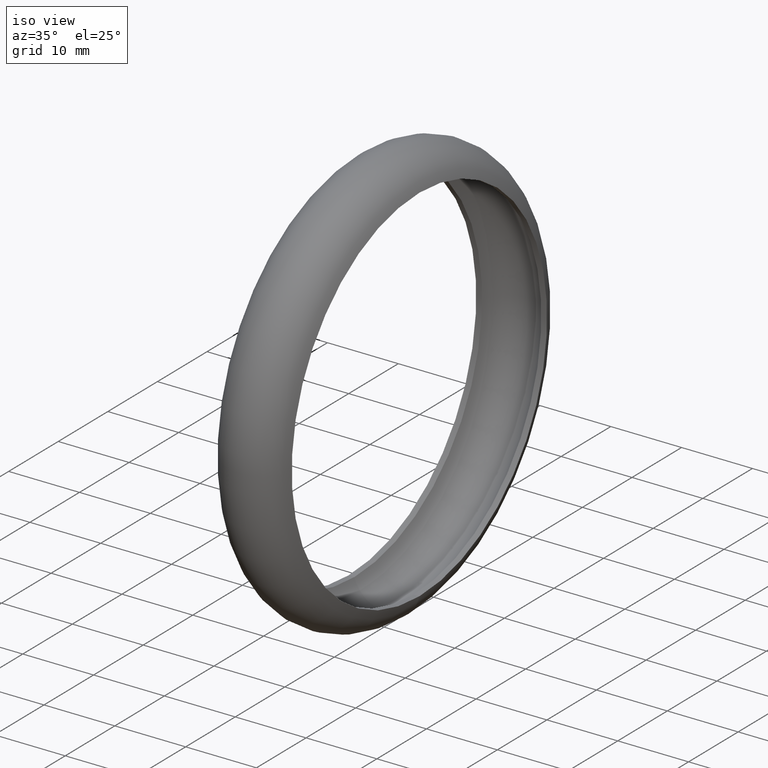
[diagram: clean part render]
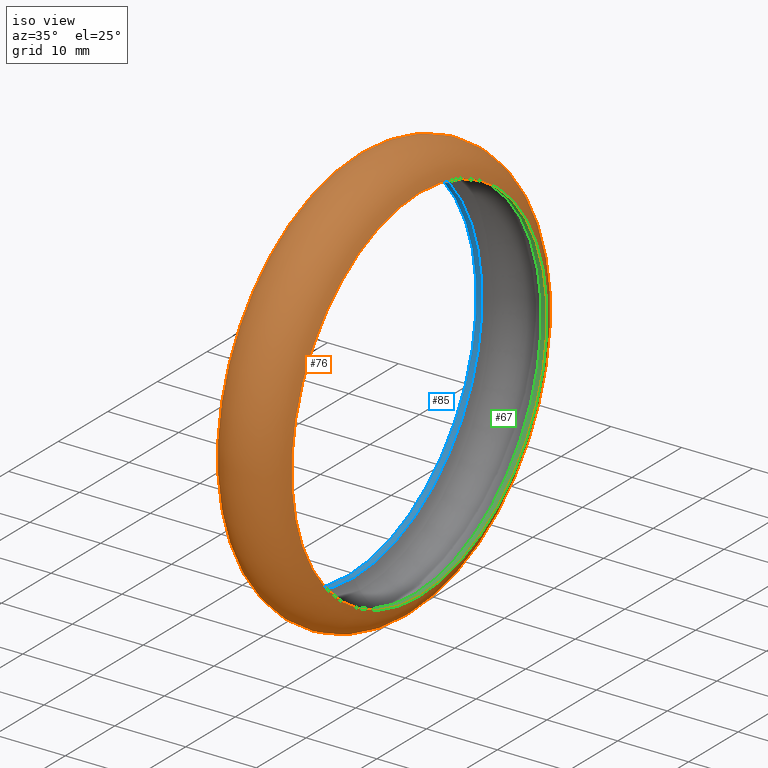
[diagram: same view with three faces highlighted in distinct colors, each labeled with its STEP entity id]
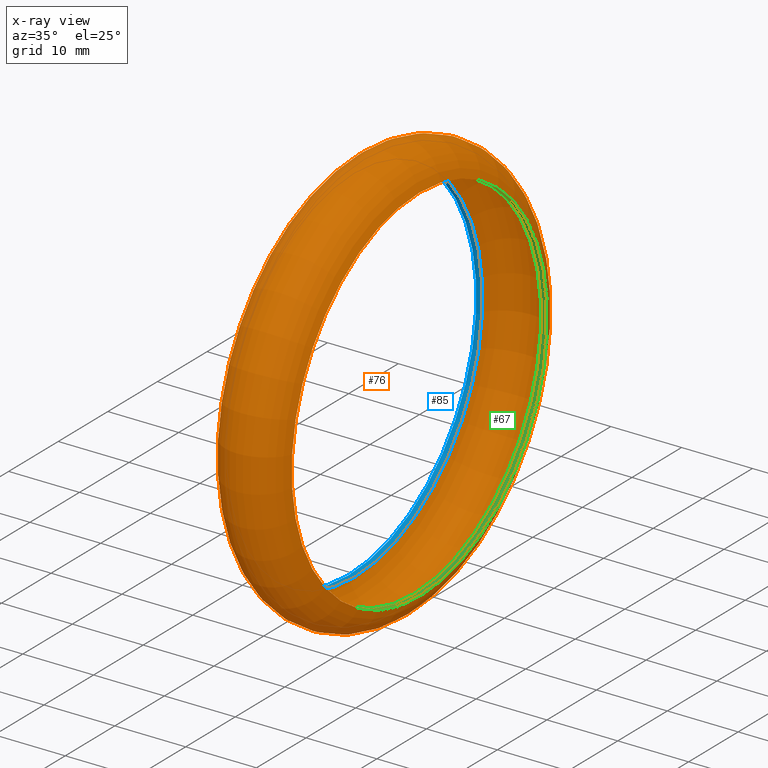
[diagram: x-ray of the same camera — body ghosted, the three highlighted faces saturated]
A machine part, iso view with three faces highlighted in distinct colors.
The next image is the same camera in x-ray (body ghosted, the three faces saturated) — at least one of them is partly hidden behind the body in this view.
Their STEP definitions:

[orange] entity #76 — the highlighted toroidal blend (fillet) surface has major radius 24.625 mm and minor (blend) radius 5.125 mm.
#76=ADVANCED_FACE('',(#112,#114),#116,.T.);
#112=FACE_OUTER_BOUND('',#113,.T.);
#113=EDGE_LOOP('',(#134));
#114=FACE_OUTER_BOUND('',#115,.T.);
#115=EDGE_LOOP('',(#135));
#116=TOROIDAL_SURFACE('',#117,24.625,5.125);
#117=AXIS2_PLACEMENT_3D('',#118,#119,#120);
#118=CARTESIAN_POINT('',(1.77635683940025E-015,0.,0.));
#119=DIRECTION('',(1.,0.,0.));
#120=DIRECTION('',(0.,0.,-1.));
#134=ORIENTED_EDGE('',*,*,#140,.F.);
#135=ORIENTED_EDGE('',*,*,#141,.T.);
#140=EDGE_CURVE('',#146,#146,#147,.T.);
#141=EDGE_CURVE('',#148,#148,#149,.T.);
#146=VERTEX_POINT('',#160);
#147=CIRCLE('',#161,25.75);
#148=VERTEX_POINT('',#165);
#149=CIRCLE('',#166,25.75);
#160=CARTESIAN_POINT('',(5.,0.,-25.75));
#161=AXIS2_PLACEMENT_3D('',#162,#163,#164);
#162=CARTESIAN_POINT('',(5.,0.,0.));
#163=DIRECTION('',(1.,0.,0.));
#164=DIRECTION('',(0.,0.,-1.));
#165=CARTESIAN_POINT('',(-5.,0.,-25.75));
#166=AXIS2_PLACEMENT_3D('',#167,#168,#169);
#167=CARTESIAN_POINT('',(-5.,0.,0.));
#168=DIRECTION('',(1.,0.,0.));
#169=DIRECTION('',(0.,0.,-1.));

[blue] entity #85 — the highlighted cylindrical surface (bore or boss wall) has radius 25.75 mm, axis along (1, 0, 0).
#85=ADVANCED_FACE('',(#121,#123),#125,.F.);
#121=FACE_OUTER_BOUND('',#122,.T.);
#122=EDGE_LOOP('',(#136));
#123=FACE_OUTER_BOUND('',#124,.T.);
#124=EDGE_LOOP('',(#137));
#125=CYLINDRICAL_SURFACE('',#126,25.75);
#126=AXIS2_PLACEMENT_3D('',#127,#128,#129);
#127=CARTESIAN_POINT('',(-4.17612259121831,0.,0.));
#128=DIRECTION('',(1.,0.,0.));
#129=DIRECTION('',(0.,0.,-1.));
#136=ORIENTED_EDGE('',*,*,#139,.T.);
#137=ORIENTED_EDGE('',*,*,#141,.F.);
#139=EDGE_CURVE('',#144,#144,#145,.T.);
#141=EDGE_CURVE('',#148,#148,#149,.T.);
#144=VERTEX_POINT('',#155);
#145=CIRCLE('',#156,25.75);
#148=VERTEX_POINT('',#165);
#149=CIRCLE('',#166,25.75);
#155=CARTESIAN_POINT('',(-4.17612259121831,0.,-25.75));
#156=AXIS2_PLACEMENT_3D('',#157,#158,#159);
#157=CARTESIAN_POINT('',(-4.17612259121831,0.,0.));
#158=DIRECTION('',(1.,0.,0.));
#159=DIRECTION('',(0.,0.,-1.));
#165=CARTESIAN_POINT('',(-5.,0.,-25.75));
#166=AXIS2_PLACEMENT_3D('',#167,#168,#169);
#167=CARTESIAN_POINT('',(-5.,0.,0.));
#168=DIRECTION('',(1.,0.,0.));
#169=DIRECTION('',(0.,0.,-1.));

[green] entity #67 — the highlighted cylindrical surface (bore or boss wall) has radius 25.75 mm, axis along (1, 0, 0).
#67=ADVANCED_FACE('',(#103,#105),#107,.F.);
#103=FACE_OUTER_BOUND('',#104,.T.);
#104=EDGE_LOOP('',(#132));
#105=FACE_OUTER_BOUND('',#106,.T.);
#106=EDGE_LOOP('',(#133));
#107=CYLINDRICAL_SURFACE('',#108,25.75);
#108=AXIS2_PLACEMENT_3D('',#109,#110,#111);
#109=CARTESIAN_POINT('',(5.,0.,0.));
#110=DIRECTION('',(1.,0.,0.));
#111=DIRECTION('',(0.,0.,-1.));
#132=ORIENTED_EDGE('',*,*,#140,.T.);
#133=ORIENTED_EDGE('',*,*,#138,.F.);
#138=EDGE_CURVE('',#142,#142,#143,.T.);
#140=EDGE_CURVE('',#146,#146,#147,.T.);
#142=VERTEX_POINT('',#150);
#143=CIRCLE('',#151,25.75);
#146=VERTEX_POINT('',#160);
#147=CIRCLE('',#161,25.75);
#150=CARTESIAN_POINT('',(4.17612259121832,0.,-25.75));
#151=AXIS2_PLACEMENT_3D('',#152,#153,#154);
#152=CARTESIAN_POINT('',(4.17612259121832,0.,0.));
#153=DIRECTION('',(1.,0.,0.));
#154=DIRECTION('',(0.,0.,-1.));
#160=CARTESIAN_POINT('',(5.,0.,-25.75));
#161=AXIS2_PLACEMENT_3D('',#162,#163,#164);
#162=CARTESIAN_POINT('',(5.,0.,0.));
#163=DIRECTION('',(1.,0.,0.));
#164=DIRECTION('',(0.,0.,-1.));